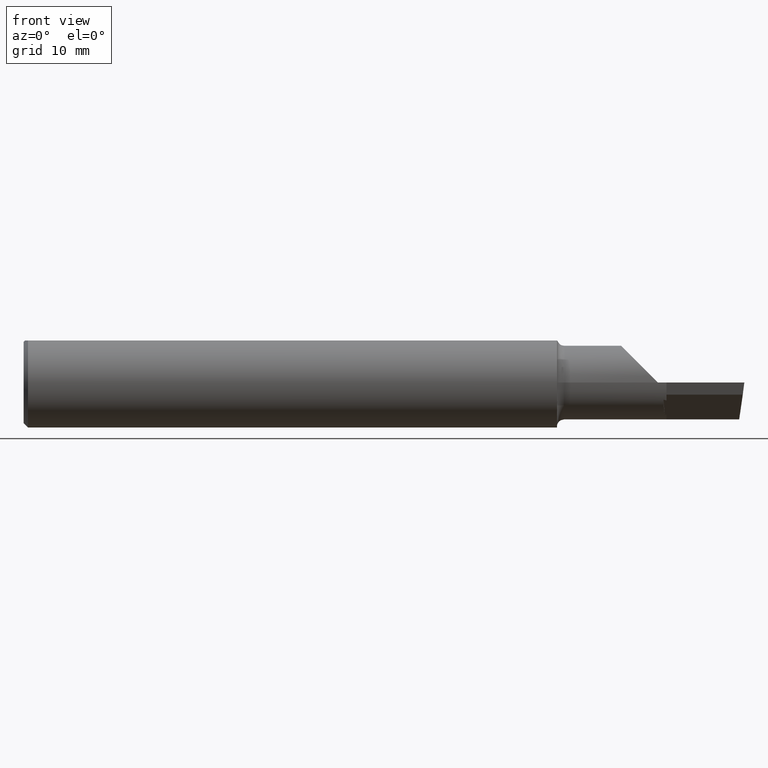
[diagram: clean part render]
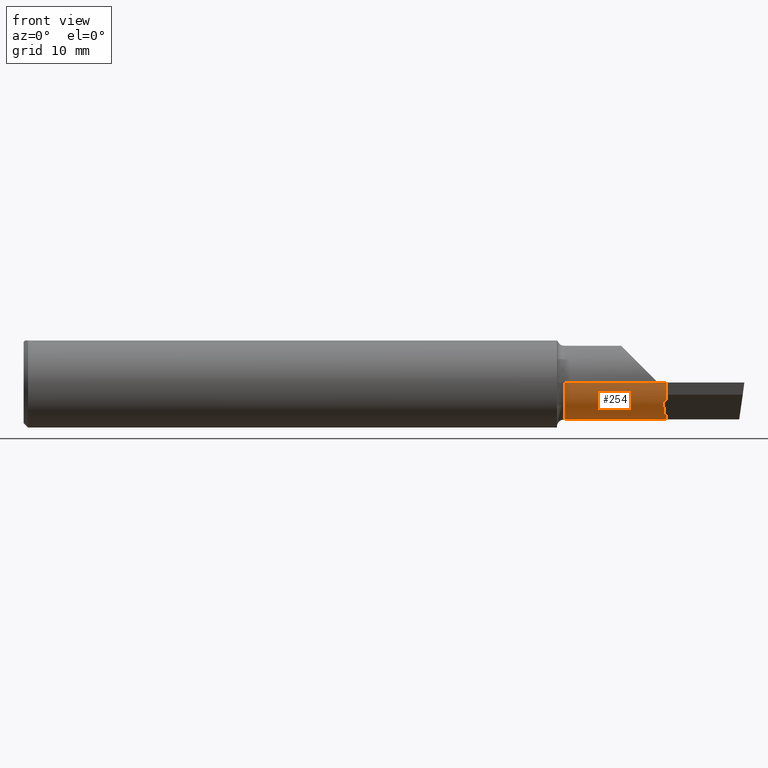
[diagram: same view with one face highlighted and labeled with its STEP entity id]
A machine part, front view. The second image highlights one B-rep face of the part: STEP entity #254.
In plain terms, the highlighted cylindrical surface (partial cylindrical patch) has radius 3.2487 mm, axis along (-1, 0, -0).
Its self-contained STEP definition (entity closure, byte-faithful):
#15 = ORIENTED_EDGE ( 'NONE', *, *, #617, .T. ) ;
#19 = ORIENTED_EDGE ( 'NONE', *, *, #379, .T. ) ;
#24 = VERTEX_POINT ( 'NONE', #61 ) ;
#40 = DIRECTION ( 'NONE',  ( -1.000000000000000000, 6.829619984160658046E-18, -0.000000000000000000 ) ) ;
#50 = DIRECTION ( 'NONE',  ( 0.000000000000000000, -1.000000000000000000, 0.000000000000000000 ) ) ;
#53 = VECTOR ( 'NONE', #548, 39.37007874015748143 ) ;
#56 = DIRECTION ( 'NONE',  ( -1.000000000000000000, -0.000000000000000000, -0.000000000000000000 ) ) ;
#57 = EDGE_CURVE ( 'NONE', #644, #24, #684, .T. ) ;
#58 = VERTEX_POINT ( 'NONE', #285 ) ;
#61 = CARTESIAN_POINT ( 'NONE',  ( 2.480278310775617889, 0.03899999999999996525, -0.1279000000000000137 ) ) ;
#69 = CARTESIAN_POINT ( 'NONE',  ( 2.479943065675275005, 0.09875439382140573097, -0.1172113754642092193 ) ) ;
#81 = LINE ( 'NONE', #299, #274 ) ;
#89 = ORIENTED_EDGE ( 'NONE', *, *, #110, .F. ) ;
#90 = LINE ( 'NONE', #315, #520 ) ;
#102 = ORIENTED_EDGE ( 'NONE', *, *, #57, .T. ) ;
#105 = DIRECTION ( 'NONE',  ( 0.000000000000000000, -1.000000000000000000, 0.000000000000000000 ) ) ;
#110 = EDGE_CURVE ( 'NONE', #644, #376, #81, .T. ) ;
#130 = CARTESIAN_POINT ( 'NONE',  ( 2.481689713451043833, 0.1221769230769230025, -0.09715971113303926987 ) ) ;
#140 = VECTOR ( 'NONE', #56, 39.37007874015748143 ) ;
#142 = DIRECTION ( 'NONE',  ( -1.000000000000000000, 6.829619984160658046E-18, -0.000000000000000000 ) ) ;
#144 = ORIENTED_EDGE ( 'NONE', *, *, #466, .T. ) ;
#152 = VERTEX_POINT ( 'NONE', #524 ) ;
#155 = DIRECTION ( 'NONE',  ( 0.000000000000000000, -1.000000000000000000, 0.000000000000000000 ) ) ;
#159 = CARTESIAN_POINT ( 'NONE',  ( 2.229999999999999982, 0.03899999999999997913, 0.000000000000000000 ) ) ;
#162 = CARTESIAN_POINT ( 'NONE',  ( 2.229999999999999982, 0.03899999999999996525, -0.1278999999999999859 ) ) ;
#164 =( BOUNDED_CURVE ( )  B_SPLINE_CURVE ( 3, ( #207, #599, #545, #498 ),
 .UNSPECIFIED., .F., .T. ) 
 B_SPLINE_CURVE_WITH_KNOTS ( ( 4, 4 ),
 ( 2.847793815029258546, 2.868396356574266282 ),
 .UNSPECIFIED. ) 
 CURVE ( )  GEOMETRIC_REPRESENTATION_ITEM ( )  RATIONAL_B_SPLINE_CURVE ( ( 1.000000000000000000, 0.9999646282529517372, 0.9999646282529517372, 1.000000000000000000 ) ) 
 REPRESENTATION_ITEM ( '' )  );
#166 = CIRCLE ( 'NONE', #547, 0.1278999999999999859 ) ;
#169 = CARTESIAN_POINT ( 'NONE',  ( 2.229999999999999982, -0.07288638121117572977, -0.06196650465749591746 ) ) ;
#207 = CARTESIAN_POINT ( 'NONE',  ( 2.219243579197731631, -0.07413921331227917022, -0.05964837307989716980 ) ) ;
#211 = LINE ( 'NONE', #326, #53 ) ;
#218 = CARTESIAN_POINT ( 'NONE',  ( 2.229999999999999982, 0.03899999999999997913, 0.000000000000000000 ) ) ;
#220 = CARTESIAN_POINT ( 'NONE',  ( 2.480278310775617889, 0.03899999999999996525, -0.1279000000000000137 ) ) ;
#225 = CARTESIAN_POINT ( 'NONE',  ( 2.229999999999999982, -0.08890000000000000679, 0.000000000000000000 ) ) ;
#248 = DIRECTION ( 'NONE',  ( -1.000000000000000000, 6.829619984160658046E-18, -0.000000000000000000 ) ) ;
#254 = ADVANCED_FACE ( 'NONE', ( #364 ), #324, .T. ) ;
#265 = CARTESIAN_POINT ( 'NONE',  ( 1.875000000000000000, 0.1221769230769220033, -0.09715971113304010254 ) ) ;
#267 = ORIENTED_EDGE ( 'NONE', *, *, #296, .T. ) ;
#272 = CARTESIAN_POINT ( 'NONE',  ( 2.500000000000000000, 0.03899999999999996525, -0.1279000000000000137 ) ) ;
#274 = VECTOR ( 'NONE', #248, 39.37007874015748143 ) ;
#285 = CARTESIAN_POINT ( 'NONE',  ( 1.875000000000000000, -0.08890000000000003455, 0.000000000000000000 ) ) ;
#296 = EDGE_CURVE ( 'NONE', #363, #58, #90, .T. ) ;
#299 = CARTESIAN_POINT ( 'NONE',  ( 2.052500000000000213, 0.1221769230769230025, -0.09715971113303926987 ) ) ;
#303 = CARTESIAN_POINT ( 'NONE',  ( 2.222050397172008918, -0.04498929411773995579, -0.09964739099361781538 ) ) ;
#315 = CARTESIAN_POINT ( 'NONE',  ( -8.735083959741482054E-19, -0.08890000000000000679, 0.000000000000000000 ) ) ;
#320 = CARTESIAN_POINT ( 'NONE',  ( 2.200000000000000178, -0.08890000000000007618, 9.797174393178826150E-17 ) ) ;
#322 = DIRECTION ( 'NONE',  ( -6.829619984160657276E-18, -1.000000000000000000, 0.000000000000000000 ) ) ;
#324 = CYLINDRICAL_SURFACE ( 'NONE', #394, 0.1279000000000000137 ) ;
#326 = CARTESIAN_POINT ( 'NONE',  ( -8.735083959741170053E-19, -0.08889999999999999292, 3.155924005931204823E-16 ) ) ;
#333 = LINE ( 'NONE', #272, #140 ) ;
#335 = AXIS2_PLACEMENT_3D ( 'NONE', #159, #646, #50 ) ;
#342 = CARTESIAN_POINT ( 'NONE',  ( 2.479452310584073782, 0.06983316589608461189, -0.1278999999999999582 ) ) ;
#346 = EDGE_CURVE ( 'NONE', #452, #152, #496, .T. ) ;
#363 = VERTEX_POINT ( 'NONE', #320 ) ;
#364 = FACE_OUTER_BOUND ( 'NONE', #648, .T. ) ;
#376 = VERTEX_POINT ( 'NONE', #265 ) ;
#377 = CARTESIAN_POINT ( 'NONE',  ( 2.226142141782128547, -0.02355416889857119347, -0.1115599441614215925 ) ) ;
#379 = EDGE_CURVE ( 'NONE', #589, #551, #164, .T. ) ;
#382 =( BOUNDED_CURVE ( )  B_SPLINE_CURVE ( 3, ( #443, #655, #377, #606 ),
 .UNSPECIFIED., .F., .F. ) 
 B_SPLINE_CURVE_WITH_KNOTS ( ( 4, 4 ),
 ( 3.414788950605319950, 3.426164066945256881 ),
 .UNSPECIFIED. ) 
 CURVE ( )  GEOMETRIC_REPRESENTATION_ITEM ( )  RATIONAL_B_SPLINE_CURVE ( ( 1.000000000000000000, 0.9999892172564213144, 0.9999892172564213144, 1.000000000000000000 ) ) 
 REPRESENTATION_ITEM ( '' )  );
#390 = CIRCLE ( 'NONE', #632, 0.1279000000000000137 ) ;
#394 = AXIS2_PLACEMENT_3D ( 'NONE', #596, #142, #322 ) ;
#413 = CARTESIAN_POINT ( 'NONE',  ( 1.875000000000000000, 0.03899999999999997913, 0.000000000000000000 ) ) ;
#434 = ORIENTED_EDGE ( 'NONE', *, *, #494, .T. ) ;
#443 = CARTESIAN_POINT ( 'NONE',  ( 2.229999999999999982, -0.02439791101555200195, -0.1110815685830198740 ) ) ;
#452 = VERTEX_POINT ( 'NONE', #162 ) ;
#466 = EDGE_CURVE ( 'NONE', #551, #477, #166, .T. ) ;
#477 = VERTEX_POINT ( 'NONE', #225 ) ;
#486 = ORIENTED_EDGE ( 'NONE', *, *, #518, .T. ) ;
#491 = CARTESIAN_POINT ( 'NONE',  ( 2.224155181711049423, -0.02313027091166858576, -0.1117955251181489834 ) ) ;
#494 = EDGE_CURVE ( 'NONE', #152, #500, #382, .T. ) ;
#496 = CIRCLE ( 'NONE', #335, 0.1278999999999999859 ) ;
#498 = CARTESIAN_POINT ( 'NONE',  ( 2.229999999999999982, -0.07288638121117572977, -0.06196650465749591746 ) ) ;
#500 = VERTEX_POINT ( 'NONE', #491 ) ;
#510 = EDGE_CURVE ( 'NONE', #363, #477, #211, .T. ) ;
#518 = EDGE_CURVE ( 'NONE', #24, #452, #333, .T. ) ;
#519 = CARTESIAN_POINT ( 'NONE',  ( 2.224155181711049423, -0.02313027091166858576, -0.1117955251181489834 ) ) ;
#520 = VECTOR ( 'NONE', #40, 39.37007874015748143 ) ;
#524 = CARTESIAN_POINT ( 'NONE',  ( 2.229999999999999982, -0.02439791101555200195, -0.1110815685830198740 ) ) ;
#527 = DIRECTION ( 'NONE',  ( -1.000000000000000000, 6.829619984160658046E-18, -0.000000000000000000 ) ) ;
#532 =( BOUNDED_CURVE ( )  B_SPLINE_CURVE ( 3, ( #519, #303, #685, #627 ),
 .UNSPECIFIED., .F., .T. ) 
 B_SPLINE_CURVE_WITH_KNOTS ( ( 4, 4 ),
 ( 5.219635427496931435, 5.798005679412930213 ),
 .UNSPECIFIED. ) 
 CURVE ( )  GEOMETRIC_REPRESENTATION_ITEM ( )  RATIONAL_B_SPLINE_CURVE ( ( 1.000000000000000000, 0.9723177149240065376, 0.9723177149240065376, 1.000000000000000000 ) ) 
 REPRESENTATION_ITEM ( '' )  );
#545 = CARTESIAN_POINT ( 'NONE',  ( 2.226541365962205532, -0.07331194456661024872, -0.06119810979516130539 ) ) ;
#547 = AXIS2_PLACEMENT_3D ( 'NONE', #218, #669, #105 ) ;
#548 = DIRECTION ( 'NONE',  ( 1.000000000000000000, -6.829619984160658046E-18, 0.000000000000000000 ) ) ;
#551 = VERTEX_POINT ( 'NONE', #169 ) ;
#559 = CARTESIAN_POINT ( 'NONE',  ( 2.481689713451043833, 0.1221769230769230025, -0.09715971113303926987 ) ) ;
#568 = ORIENTED_EDGE ( 'NONE', *, *, #510, .F. ) ;
#589 = VERTEX_POINT ( 'NONE', #623 ) ;
#596 = CARTESIAN_POINT ( 'NONE',  ( 0.000000000000000000, 0.03899999999999999994, 0.000000000000000000 ) ) ;
#599 = CARTESIAN_POINT ( 'NONE',  ( 2.222955765532497630, -0.07372957003912058993, -0.06042537193620697161 ) ) ;
#606 = CARTESIAN_POINT ( 'NONE',  ( 2.224155181711049423, -0.02313027091166858576, -0.1117955251181489834 ) ) ;
#617 = EDGE_CURVE ( 'NONE', #500, #589, #532, .T. ) ;
#623 = CARTESIAN_POINT ( 'NONE',  ( 2.219243579197731631, -0.07413921331227917022, -0.05964837307989716980 ) ) ;
#627 = CARTESIAN_POINT ( 'NONE',  ( 2.219243579197731631, -0.07413921331227917022, -0.05964837307989716980 ) ) ;
#632 = AXIS2_PLACEMENT_3D ( 'NONE', #413, #527, #155 ) ;
#644 = VERTEX_POINT ( 'NONE', #130 ) ;
#646 = DIRECTION ( 'NONE',  ( -1.000000000000000000, 6.829619984160658046E-18, -0.000000000000000000 ) ) ;
#648 = EDGE_LOOP ( 'NONE', ( #568, #267, #675, #89, #102, #486, #690, #434, #15, #19, #144 ) ) ;
#655 = CARTESIAN_POINT ( 'NONE',  ( 2.228090435553063742, -0.02397672015612753796, -0.1113219560835474742 ) ) ;
#669 = DIRECTION ( 'NONE',  ( -1.000000000000000000, 6.829619984160658046E-18, -0.000000000000000000 ) ) ;
#675 = ORIENTED_EDGE ( 'NONE', *, *, #689, .F. ) ;
#684 =( BOUNDED_CURVE ( )  B_SPLINE_CURVE ( 3, ( #559, #69, #342, #220 ),
 .UNSPECIFIED., .F., .T. ) 
 B_SPLINE_CURVE_WITH_KNOTS ( ( 4, 4 ),
 ( 5.797683689972068066, 6.505699533271590340 ),
 .UNSPECIFIED. ) 
 CURVE ( )  GEOMETRIC_REPRESENTATION_ITEM ( )  RATIONAL_B_SPLINE_CURVE ( ( 1.000000000000000000, 0.9586605761426441052, 0.9586605761426441052, 1.000000000000000000 ) ) 
 REPRESENTATION_ITEM ( '' )  );
#685 = CARTESIAN_POINT ( 'NONE',  ( 2.220366584553311373, -0.06247635677146567285, -0.08177012336190635222 ) ) ;
#689 = EDGE_CURVE ( 'NONE', #376, #58, #390, .T. ) ;
#690 = ORIENTED_EDGE ( 'NONE', *, *, #346, .T. ) ;